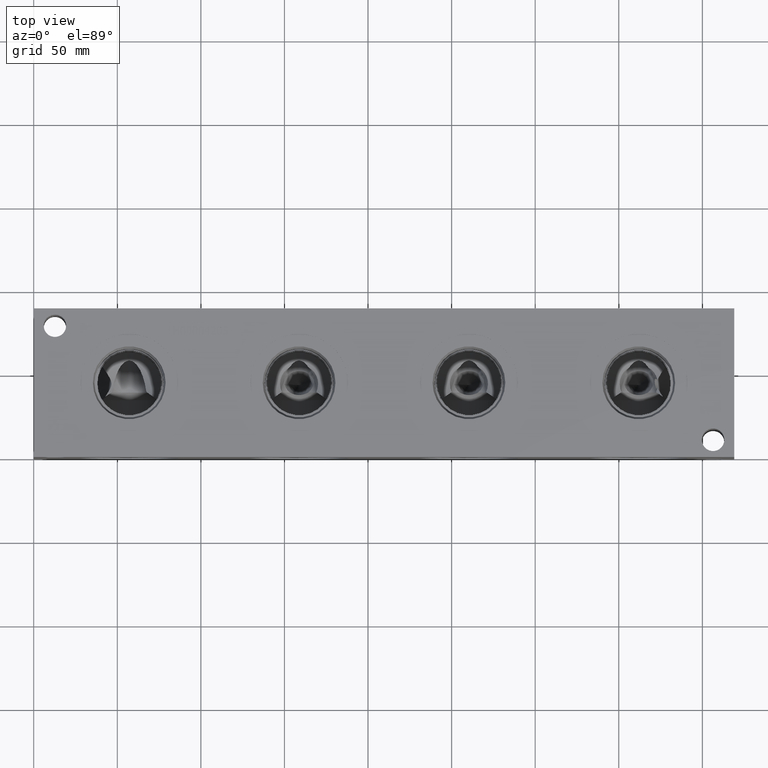
[diagram: clean part render]
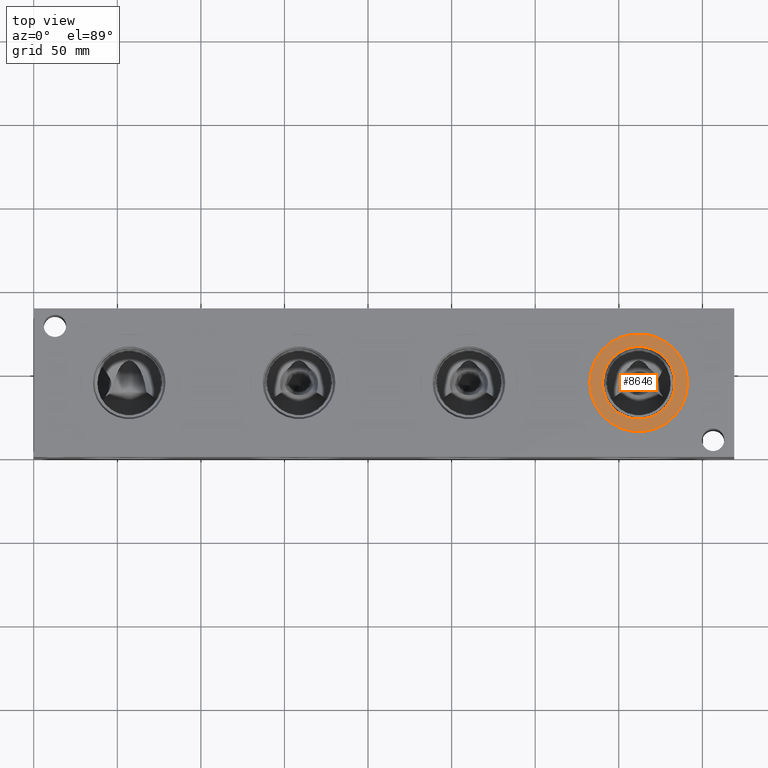
[diagram: same view with one face highlighted and labeled with its STEP entity id]
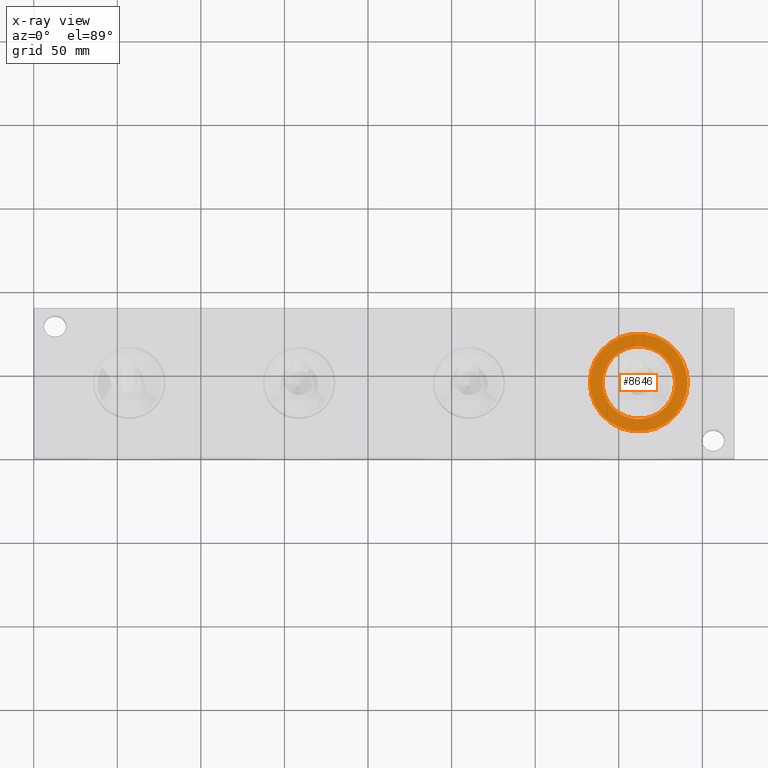
[diagram: x-ray of the same camera — body ghosted, the highlighted face saturated]
A machine part, top view. The second image highlights one B-rep face of the part: STEP entity #8646.
The next image is the same camera in x-ray: the body ghosted, the highlighted face saturated — about 0% of this face is hidden behind the body in this view.
In plain terms, the highlighted planar face has unit normal (0, 0, 1).
Its self-contained STEP definition (entity closure, byte-faithful):
#313=CIRCLE('',#9192,29.2862);
#314=CIRCLE('',#9193,29.2862);
#315=CIRCLE('',#9194,21.7551);
#415=FACE_BOUND('',#1685,.T.);
#1186=FACE_OUTER_BOUND('',#1684,.T.);
#1684=EDGE_LOOP('',(#7481,#7482));
#1685=EDGE_LOOP('',(#7483));
#3981=VERTEX_POINT('',#15179);
#3982=VERTEX_POINT('',#15180);
#3983=VERTEX_POINT('',#15183);
#5169=EDGE_CURVE('',#3981,#3982,#313,.T.);
#5170=EDGE_CURVE('',#3982,#3981,#314,.T.);
#5171=EDGE_CURVE('',#3983,#3983,#315,.T.);
#7481=ORIENTED_EDGE('',*,*,#5169,.T.);
#7482=ORIENTED_EDGE('',*,*,#5170,.T.);
#7483=ORIENTED_EDGE('',*,*,#5171,.F.);
#7923=PLANE('',#9191);
#8646=ADVANCED_FACE('',(#1186,#415),#7923,.T.);
#9191=AXIS2_PLACEMENT_3D('',#15178,#10974,#10975);
#9192=AXIS2_PLACEMENT_3D('',#15181,#10976,#10977);
#9193=AXIS2_PLACEMENT_3D('',#15182,#10978,#10979);
#9194=AXIS2_PLACEMENT_3D('',#15184,#10980,#10981);
#10974=DIRECTION('center_axis',(0.,0.,1.));
#10975=DIRECTION('ref_axis',(1.,0.,0.));
#10976=DIRECTION('center_axis',(0.,0.,1.));
#10977=DIRECTION('ref_axis',(1.,0.,0.));
#10978=DIRECTION('center_axis',(0.,0.,1.));
#10979=DIRECTION('ref_axis',(1.,0.,0.));
#10980=DIRECTION('center_axis',(0.,0.,1.));
#10981=DIRECTION('ref_axis',(1.,0.,0.));
#15178=CARTESIAN_POINT('Origin',(361.95,44.45,88.1126));
#15179=CARTESIAN_POINT('',(391.2362,44.45,88.1126));
#15180=CARTESIAN_POINT('',(332.6638,44.45,88.1126));
#15181=CARTESIAN_POINT('Origin',(361.95,44.45,88.1126));
#15182=CARTESIAN_POINT('Origin',(361.95,44.45,88.1126));
#15183=CARTESIAN_POINT('',(340.1949,44.45,88.1126));
#15184=CARTESIAN_POINT('Origin',(361.95,44.45,88.1126));